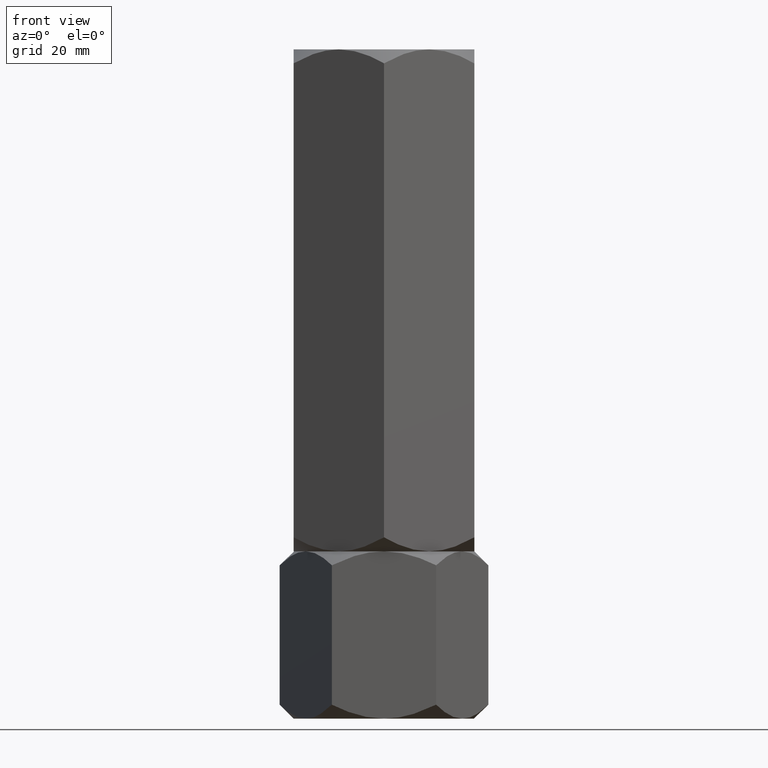
[diagram: clean part render]
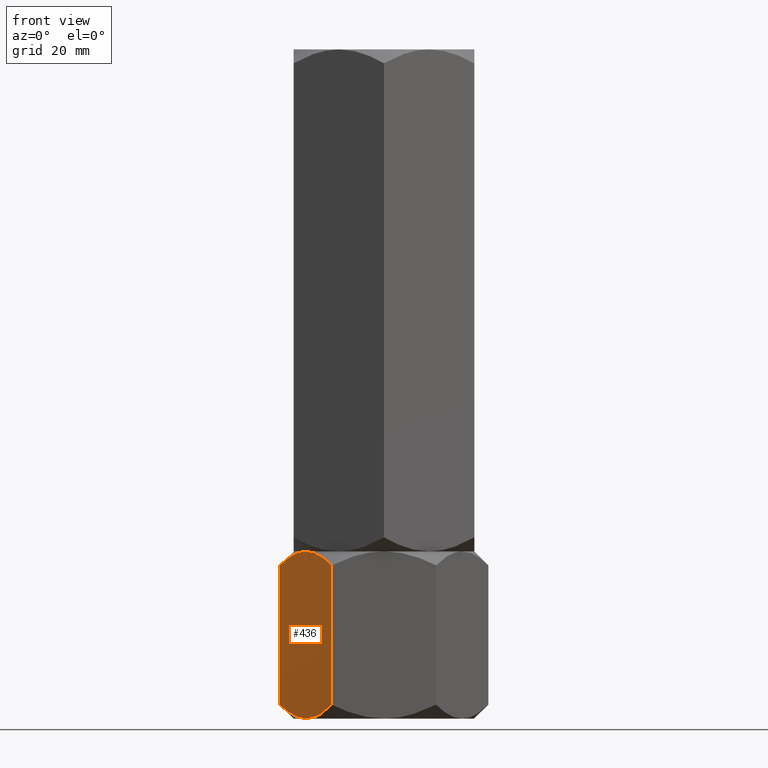
[diagram: same view with one face highlighted and labeled with its STEP entity id]
A machine part, front view. The second image highlights one B-rep face of the part: STEP entity #436.
In plain terms, the highlighted planar face has unit normal (0.866, 0.5, -0).
Its self-contained STEP definition (entity closure, byte-faithful):
#76 = ORIENTED_EDGE ( 'NONE', *, *, #78, .F. ) ;
#78 = EDGE_CURVE ( 'NONE', #713, #1965, #86, .T. ) ;
#86 = B_SPLINE_CURVE_WITH_KNOTS ( 'NONE', 3,
 ( #407, #1052, #837, #1147, #1782, #897 ),
 .UNSPECIFIED., .F., .F.,
 ( 4, 2, 4 ),
 ( 0.01077282027732746894, 0.01612137750481873466, 0.02146993473231000038 ),
 .UNSPECIFIED. ) ;
#90 = CARTESIAN_POINT ( 'NONE',  ( -19.13650452186756823, -2.854601888853814717, 32.05595025544343457 ) ) ;
#116 = LINE ( 'NONE', #1666, #1669 ) ;
#175 = EDGE_LOOP ( 'NONE', ( #1612, #322, #1659, #1614, #531, #76 ) ) ;
#229 = VECTOR ( 'NONE', #1851, 1000.000000000000000 ) ;
#257 = DIRECTION ( 'NONE',  ( -0.000000000000000000, -0.000000000000000000, -1.000000000000000000 ) ) ;
#292 = CARTESIAN_POINT ( 'NONE',  ( -15.81600583360881807, -8.605874323383771340, 33.33333333333330728 ) ) ;
#298 = CARTESIAN_POINT ( 'NONE',  ( -15.58845726811989607, -9.000000000000003553, 0.000000000000000000 ) ) ;
#322 = ORIENTED_EDGE ( 'NONE', *, *, #1169, .T. ) ;
#330 = CARTESIAN_POINT ( 'NONE',  ( -19.13297464765288325, -2.860715810337966403, 1.272574701504241235 ) ) ;
#339 = DIRECTION ( 'NONE',  ( 0.8660254037844385966, 0.5000000000000001110, -0.000000000000000000 ) ) ;
#348 = CARTESIAN_POINT ( 'NONE',  ( -16.49227650070744389, -7.434539168300462464, 3.445730029430492596E-15 ) ) ;
#376 = CARTESIAN_POINT ( 'NONE',  ( -10.39230484541326227, -18.00000000000000355, 2.784609690826521877 ) ) ;
#391 = B_SPLINE_CURVE_WITH_KNOTS ( 'NONE', 3,
 ( #376, #1498, #1350, #533, #1022, #1508, #1418, #2027, #1403, #298 ),
 .UNSPECIFIED., .F., .F.,
 ( 4, 2, 2, 2, 4 ),
 ( 2.544307986795061014E-07, 0.005386537354063075135, 0.008079678815695273339, 0.009426249546511372007, 0.01077282027732746894 ),
 .UNSPECIFIED. ) ;
#407 = CARTESIAN_POINT ( 'NONE',  ( -15.58845726811989607, -9.000000000000003553, 33.33333333333330017 ) ) ;
#436 = ADVANCED_FACE ( 'NONE', ( #1625 ), #1122, .F. ) ;
#502 = CARTESIAN_POINT ( 'NONE',  ( -15.58845726811989607, -9.000000000000003553, 0.000000000000000000 ) ) ;
#531 = ORIENTED_EDGE ( 'NONE', *, *, #824, .F. ) ;
#533 = CARTESIAN_POINT ( 'NONE',  ( -13.33524813246346952, -12.90267270303528235, 0.5370855558290108522 ) ) ;
#604 = CARTESIAN_POINT ( 'NONE',  ( -16.50312530264320543, -7.415748492146457593, 33.24638644321514391 ) ) ;
#629 = CARTESIAN_POINT ( 'NONE',  ( -16.04483044561309768, -8.209538469370130542, 33.31600047685921595 ) ) ;
#630 = CARTESIAN_POINT ( 'NONE',  ( -20.78460969082652809, -3.512511347539742526E-15, 33.33333333333330017 ) ) ;
#680 = CARTESIAN_POINT ( 'NONE',  ( -15.58845726811989607, -9.000000000000003553, 0.000000000000000000 ) ) ;
#695 = VERTEX_POINT ( 'NONE', #1075 ) ;
#711 = CARTESIAN_POINT ( 'NONE',  ( -19.96977770663490759, -1.411330396252050701, 31.36355562669839614 ) ) ;
#713 = VERTEX_POINT ( 'NONE', #1428 ) ;
#725 = CARTESIAN_POINT ( 'NONE',  ( -10.39230484541326405, -18.00000000000000355, 30.54872364250677563 ) ) ;
#782 = CARTESIAN_POINT ( 'NONE',  ( -15.58845726811989607, -9.000000000000003553, 33.33333333333330017 ) ) ;
#786 = EDGE_CURVE ( 'NONE', #1361, #1914, #391, .T. ) ;
#824 = EDGE_CURVE ( 'NONE', #1965, #1361, #1843, .T. ) ;
#827 = CARTESIAN_POINT ( 'NONE',  ( -20.78460969082652809, -3.746502714695151746E-15, 2.784609690826518325 ) ) ;
#837 = CARTESIAN_POINT ( 'NONE',  ( -13.79618737047370125, -12.10430252359947900, 33.05693742621171083 ) ) ;
#897 = CARTESIAN_POINT ( 'NONE',  ( -10.39230484541326405, -18.00000000000000355, 30.54872364250677563 ) ) ;
#903 = CARTESIAN_POINT ( 'NONE',  ( -17.84166640377631552, -5.097327296964722976, 32.79624777750428422 ) ) ;
#908 = VERTEX_POINT ( 'NONE', #960 ) ;
#960 = CARTESIAN_POINT ( 'NONE',  ( -20.78460969082652809, -3.746502714695151746E-15, 30.54872364250677919 ) ) ;
#1022 = CARTESIAN_POINT ( 'NONE',  ( -13.77442836864821629, -12.14199022028320307, 0.3405631022552708664 ) ) ;
#1037 = AXIS2_PLACEMENT_3D ( 'NONE', #630, #339, #1903 ) ;
#1052 = CARTESIAN_POINT ( 'NONE',  ( -14.68463803553234825, -10.56546083169953754, 33.33333333333330017 ) ) ;
#1075 = CARTESIAN_POINT ( 'NONE',  ( -20.78460969082652809, -3.746502714695151746E-15, 2.784609690826518325 ) ) ;
#1120 = CARTESIAN_POINT ( 'NONE',  ( -19.97072132548310108, -1.409696000463990906, 1.970721325483052233 ) ) ;
#1122 = PLANE ( 'NONE',  #1037 ) ;
#1147 = CARTESIAN_POINT ( 'NONE',  ( -12.04393988858690179, -15.13928418966203715, 32.06075863182904584 ) ) ;
#1169 = EDGE_CURVE ( 'NONE', #908, #695, #116, .T. ) ;
#1178 = EDGE_CURVE ( 'NONE', #908, #713, #1451, .T. ) ;
#1350 = CARTESIAN_POINT ( 'NONE',  ( -12.04041001437222214, -15.14539811114618750, 1.277383077889871377 ) ) ;
#1351 = EDGE_CURVE ( 'NONE', #1914, #695, #1399, .T. ) ;
#1361 = VERTEX_POINT ( 'NONE', #1760 ) ;
#1399 = B_SPLINE_CURVE_WITH_KNOTS ( 'NONE', 3,
 ( #502, #348, #1910, #330, #1120, #827 ),
 .UNSPECIFIED., .F., .F.,
 ( 4, 2, 4 ),
 ( 0.01077282027732746894, 0.01612137750481873466, 0.02146993473231000038 ),
 .UNSPECIFIED. ) ;
#1403 = CARTESIAN_POINT ( 'NONE',  ( -15.36090870263097408, -9.394125676616235765, 3.509257500474566305E-15 ) ) ;
#1418 = CARTESIAN_POINT ( 'NONE',  ( -14.67378923359658316, -10.58425150785354774, 0.08694689011815660840 ) ) ;
#1428 = CARTESIAN_POINT ( 'NONE',  ( -15.58845726811989607, -9.000000000000003553, 33.33333333333330017 ) ) ;
#1450 = CARTESIAN_POINT ( 'NONE',  ( -16.72971695024925864, -7.023280245922047804, 33.19461073423471476 ) ) ;
#1451 = B_SPLINE_CURVE_WITH_KNOTS ( 'NONE', 3,
 ( #1511, #711, #90, #903, #1720, #1450, #604, #629, #292, #782 ),
 .UNSPECIFIED., .F., .F.,
 ( 4, 2, 2, 2, 4 ),
 ( 2.544307986817553974E-07, 0.005386537354063076002, 0.008079678815695275074, 0.009426249546511372007, 0.01077282027732746894 ),
 .UNSPECIFIED. ) ;
#1498 = CARTESIAN_POINT ( 'NONE',  ( -11.20713682960488100, -16.58866960374795951, 1.969777706634903591 ) ) ;
#1508 = CARTESIAN_POINT ( 'NONE',  ( -14.44719758599053527, -10.97671975407795486, 0.1387225990985785085 ) ) ;
#1511 = CARTESIAN_POINT ( 'NONE',  ( -20.78460969082652809, -3.746502714695151746E-15, 30.54872364250677919 ) ) ;
#1612 = ORIENTED_EDGE ( 'NONE', *, *, #1178, .F. ) ;
#1614 = ORIENTED_EDGE ( 'NONE', *, *, #786, .F. ) ;
#1625 = FACE_OUTER_BOUND ( 'NONE', #175, .T. ) ;
#1659 = ORIENTED_EDGE ( 'NONE', *, *, #1351, .F. ) ;
#1666 = CARTESIAN_POINT ( 'NONE',  ( -20.78460969082652809, -3.512511347539742526E-15, 33.33333333333330017 ) ) ;
#1669 = VECTOR ( 'NONE', #257, 1000.000000000000000 ) ;
#1698 = CARTESIAN_POINT ( 'NONE',  ( -10.39230484541326227, -18.00000000000000355, 33.33333333333330017 ) ) ;
#1720 = CARTESIAN_POINT ( 'NONE',  ( -17.40248616759157230, -5.858009779716803145, 32.99277023107802620 ) ) ;
#1760 = CARTESIAN_POINT ( 'NONE',  ( -10.39230484541326227, -18.00000000000000355, 2.784609690826521877 ) ) ;
#1782 = CARTESIAN_POINT ( 'NONE',  ( -11.20619321075668751, -16.59030399953601531, 31.36261200785025238 ) ) ;
#1843 = LINE ( 'NONE', #1698, #229 ) ;
#1851 = DIRECTION ( 'NONE',  ( -0.000000000000000000, -0.000000000000000000, -1.000000000000000000 ) ) ;
#1903 = DIRECTION ( 'NONE',  ( -0.5000000000000001110, 0.8660254037844385966, 0.000000000000000000 ) ) ;
#1910 = CARTESIAN_POINT ( 'NONE',  ( -17.38072716576608912, -5.895697476400523662, 0.2763959071215840724 ) ) ;
#1914 = VERTEX_POINT ( 'NONE', #680 ) ;
#1965 = VERTEX_POINT ( 'NONE', #725 ) ;
#2027 = CARTESIAN_POINT ( 'NONE',  ( -15.13208409062669624, -9.790461530629878339, 0.01733285647409177344 ) ) ;